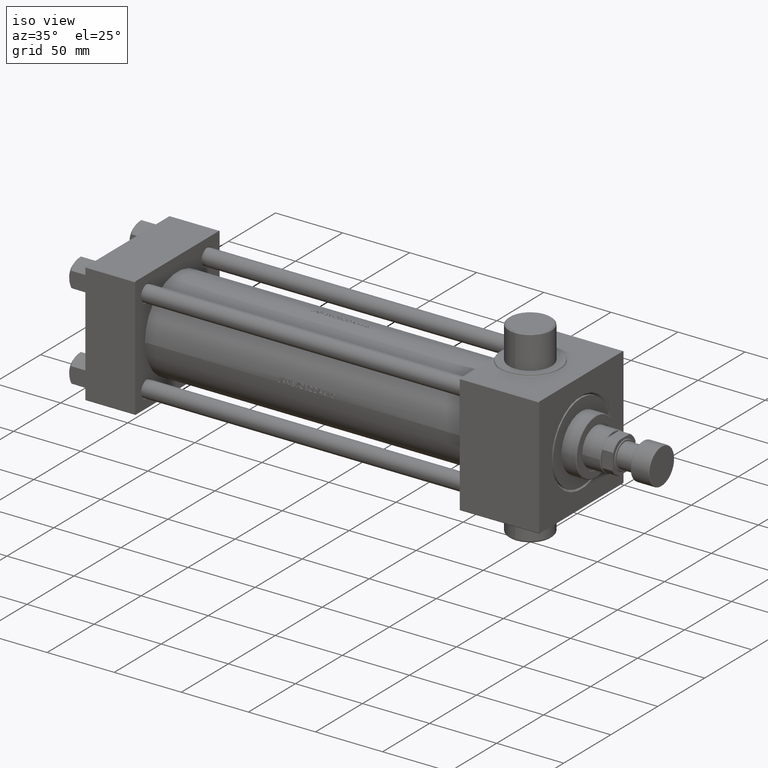
[diagram: clean part render]
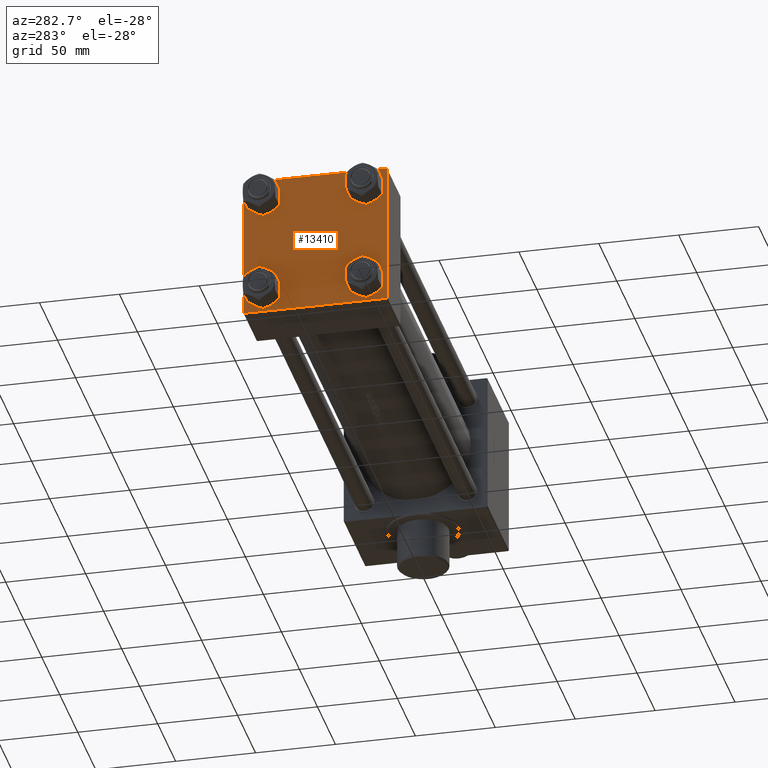
[diagram: tour spotlight — one face highlighted and labeled with its STEP entity id]
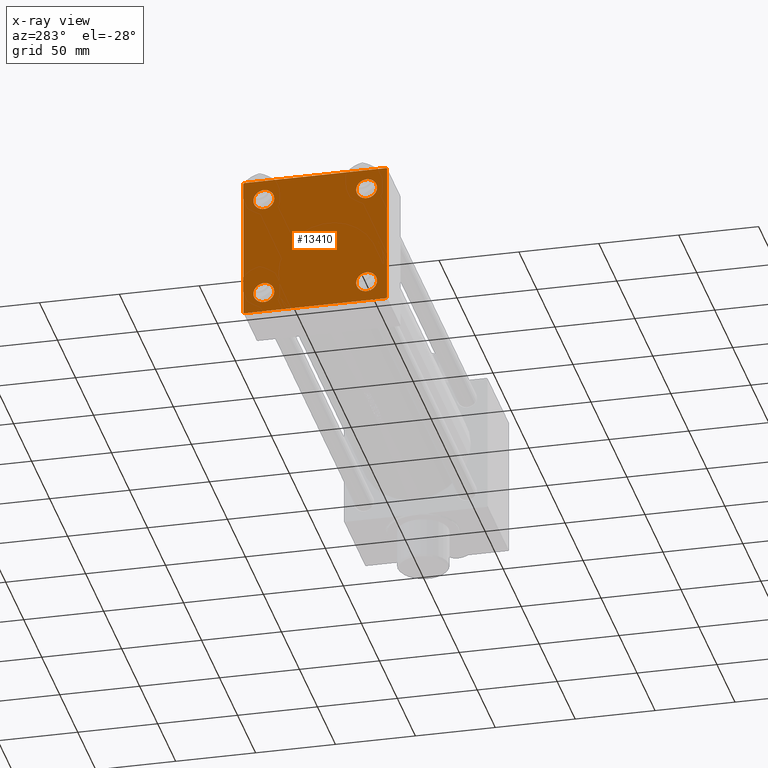
[diagram: x-ray of the same camera — body ghosted, this tour face saturated]
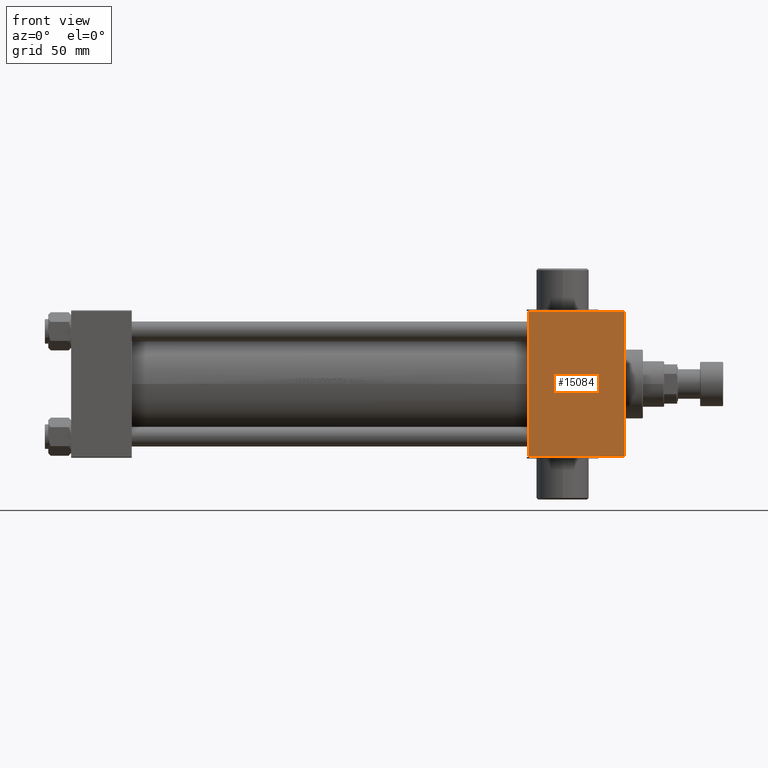
[diagram: tour spotlight — one face highlighted and labeled with its STEP entity id]
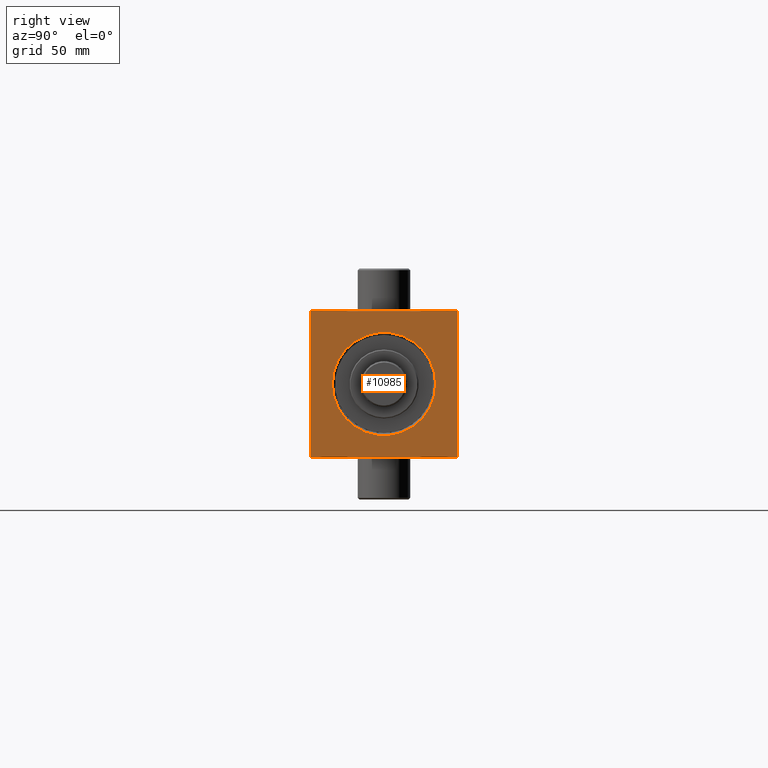
[diagram: tour spotlight — one face highlighted and labeled with its STEP entity id]
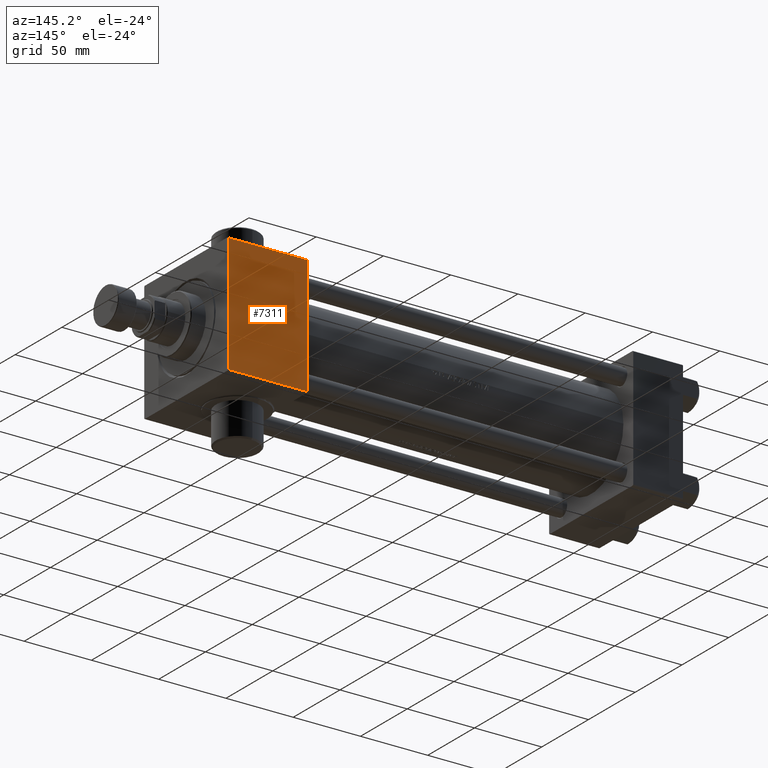
[diagram: tour spotlight — one face highlighted and labeled with its STEP entity id]
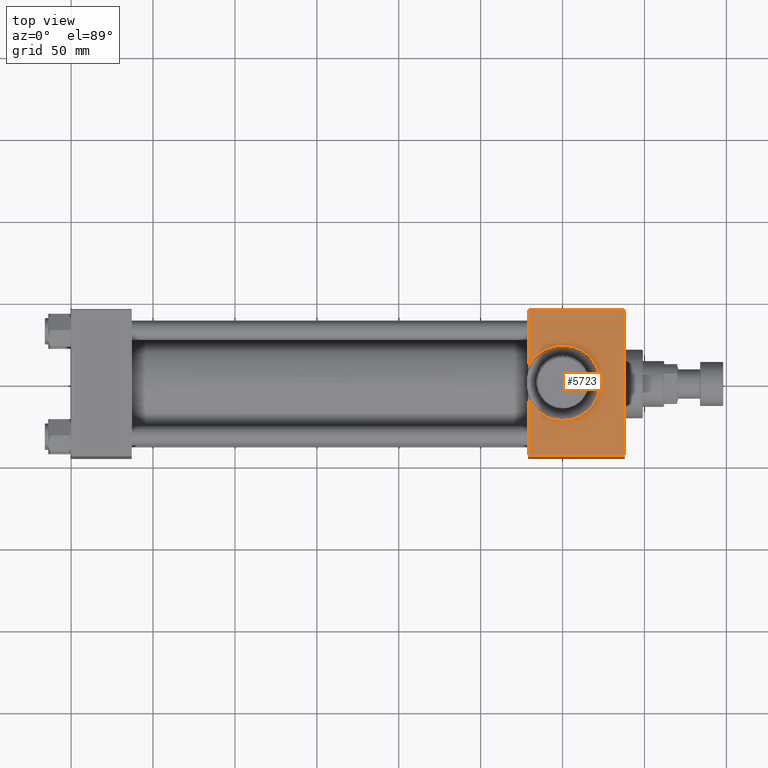
[diagram: tour spotlight — one face highlighted and labeled with its STEP entity id]
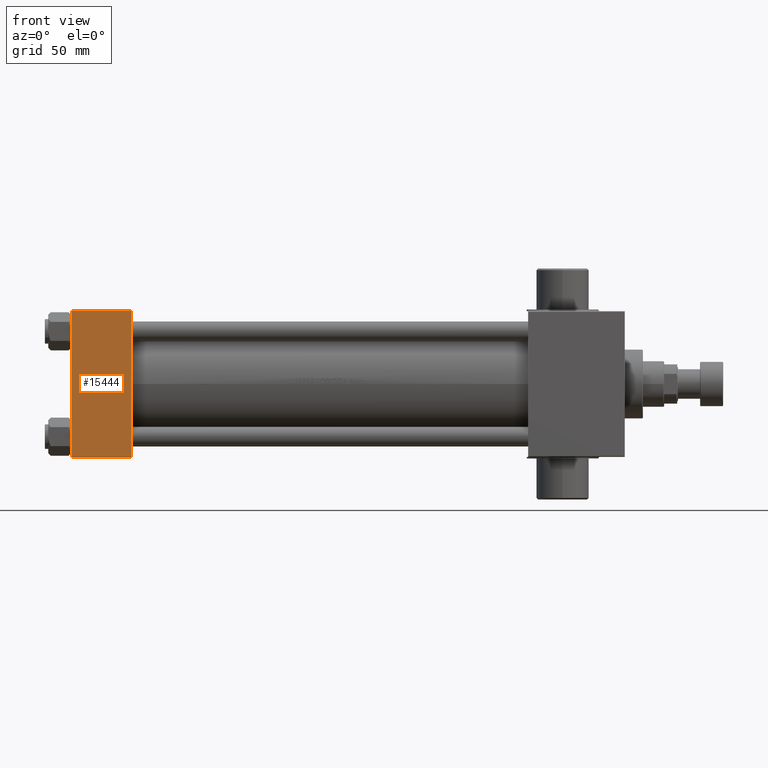
[diagram: tour spotlight — one face highlighted and labeled with its STEP entity id]
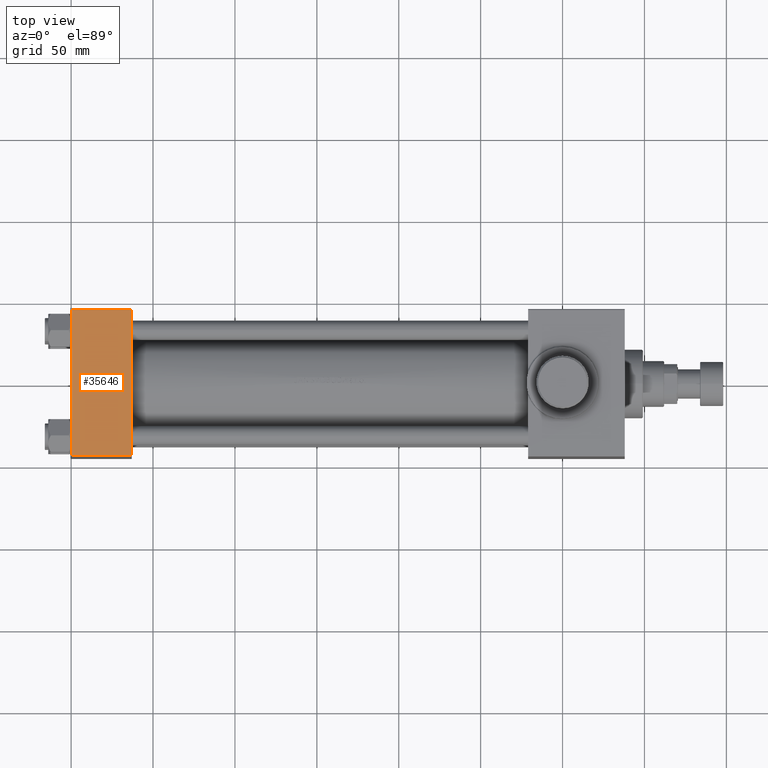
[diagram: tour spotlight — one face highlighted and labeled with its STEP entity id]
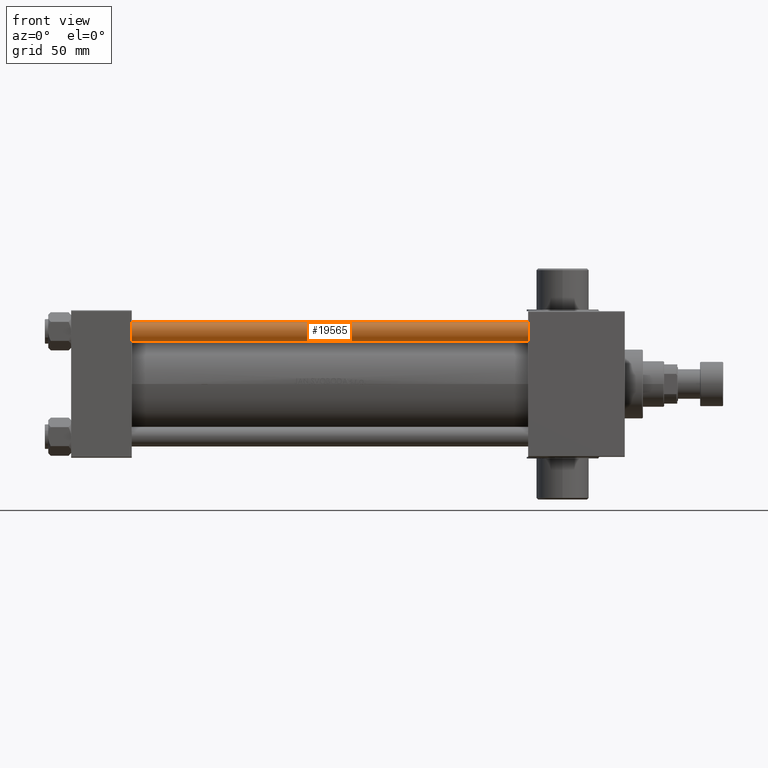
[diagram: tour spotlight — one face highlighted and labeled with its STEP entity id]
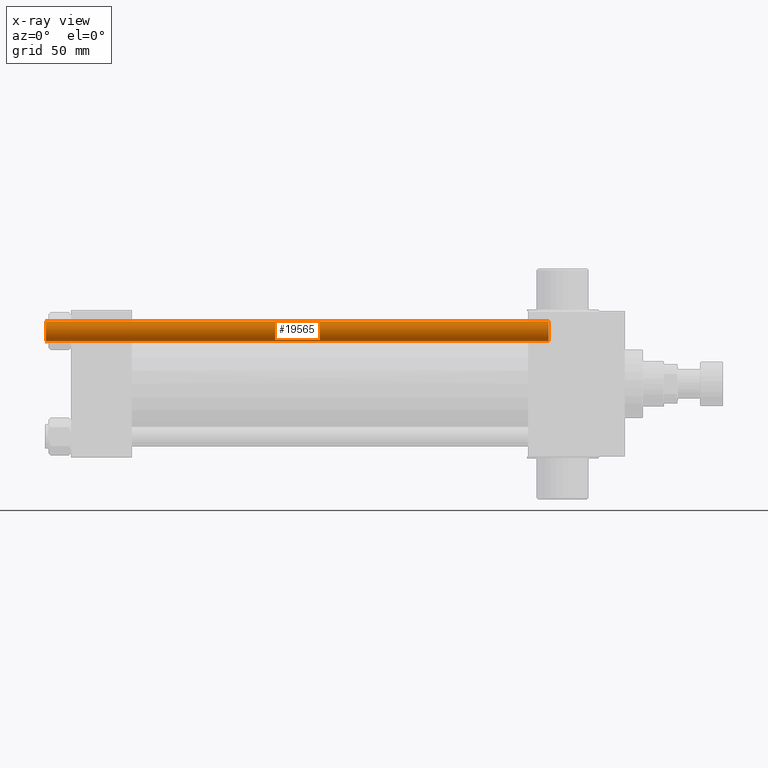
[diagram: x-ray of the same camera — body ghosted, this tour face saturated]
A machine part: a face-by-face anatomy tour. The part has 1079 B-rep faces; the first image is the clean iso view, then the 8 largest visible faces are spotlighted one at a time (largest first), each with its STEP entity span.

Face 1 — auxiliary view, entity #13410. An x-ray twin of the same camera follows (body ghosted, this face saturated) — the face is partly hidden behind the body. In plain terms, the highlighted planar face has unit normal (-1, 0, -0).
Definition (entity closure, byte-faithful):
#50 = CARTESIAN_POINT ( 'NONE',  ( 0.000000000000000000, 44.74999999999999289, 44.74999999999999289 ) ) ;
#67 = ORIENTED_EDGE ( 'NONE', *, *, #18908, .T. ) ;
#494 = DIRECTION ( 'NONE',  ( 1.000000000000000000, -0.000000000000000000, 0.000000000000000000 ) ) ;
#641 = DIRECTION ( 'NONE',  ( 1.000000000000000000, -0.000000000000000000, 0.000000000000000000 ) ) ;
#805 = CARTESIAN_POINT ( 'NONE',  ( 0.000000000000000000, -44.49999999999995737, 45.00000000000000000 ) ) ;
#1091 = CARTESIAN_POINT ( 'NONE',  ( 0.000000000000000000, -32.14999999999997726, -32.15000000000001279 ) ) ;
#1128 = CARTESIAN_POINT ( 'NONE',  ( 0.000000000000000000, 32.14999999999999147, 32.15000000000000568 ) ) ;
#1276 = FACE_BOUND ( 'NONE', #44112, .T. ) ;
#1281 = VECTOR ( 'NONE', #38834, 1000.000000000000114 ) ;
#1383 = DIRECTION ( 'NONE',  ( 0.000000000000000000, -1.000000000000000000, -1.541976423090495387E-16 ) ) ;
#1864 = DIRECTION ( 'NONE',  ( 1.000000000000000000, -0.000000000000000000, 0.000000000000000000 ) ) ;
#2220 = CARTESIAN_POINT ( 'NONE',  ( 0.000000000000000000, -44.49999999999995737, -45.00000000000000000 ) ) ;
#2519 = ORIENTED_EDGE ( 'NONE', *, *, #18929, .T. ) ;
#2922 = VECTOR ( 'NONE', #39448, 1000.000000000000000 ) ;
#3443 = CARTESIAN_POINT ( 'NONE',  ( 0.000000000000000000, 32.14999999999999147, -32.15000000000000568 ) ) ;
#3828 = CIRCLE ( 'NONE', #37243, 6.499999999999977796 ) ;
#4115 = CIRCLE ( 'NONE', #34527, 6.499999999999977796 ) ;
#4396 = CARTESIAN_POINT ( 'NONE',  ( 0.000000000000000000, 44.99999999999998579, 45.00000000000001421 ) ) ;
#4877 = EDGE_CURVE ( 'NONE', #41340, #45751, #43838, .T. ) ;
#5187 = DIRECTION ( 'NONE',  ( 1.000000000000000000, -0.000000000000000000, 0.000000000000000000 ) ) ;
#5297 = CARTESIAN_POINT ( 'NONE',  ( 0.000000000000000000, 44.99999999999998579, -44.49999999999995737 ) ) ;
#6231 = CARTESIAN_POINT ( 'NONE',  ( 0.000000000000000000, -32.14999999999997726, -32.15000000000001279 ) ) ;
#7191 = CARTESIAN_POINT ( 'NONE',  ( 0.000000000000000000, 32.14999999999999147, 32.15000000000000568 ) ) ;
#7690 = EDGE_LOOP ( 'NONE', ( #18977, #30225, #44643, #67, #45860, #14468, #23416, #24282 ) ) ;
#7827 = VECTOR ( 'NONE', #14323, 1000.000000000000114 ) ;
#8211 = EDGE_CURVE ( 'NONE', #10600, #41538, #46126, .T. ) ;
#8889 = VERTEX_POINT ( 'NONE', #9057 ) ;
#8970 = DIRECTION ( 'NONE',  ( 0.000000000000000000, 0.000000000000000000, 1.000000000000000000 ) ) ;
#9057 = CARTESIAN_POINT ( 'NONE',  ( 0.000000000000000000, 32.14999999999999147, -38.64999999999998437 ) ) ;
#9070 = VERTEX_POINT ( 'NONE', #25660 ) ;
#9087 = EDGE_CURVE ( 'NONE', #11478, #9070, #16939, .T. ) ;
#9124 = LINE ( 'NONE', #23866, #1281 ) ;
#9343 = DIRECTION ( 'NONE',  ( 1.000000000000000000, -0.000000000000000000, 0.000000000000000000 ) ) ;
#10414 = EDGE_LOOP ( 'NONE', ( #46808, #26813 ) ) ;
#10600 = VERTEX_POINT ( 'NONE', #38895 ) ;
#11478 = VERTEX_POINT ( 'NONE', #46037 ) ;
#11710 = CARTESIAN_POINT ( 'NONE',  ( 0.000000000000000000, -32.14999999999997726, -25.65000000000003411 ) ) ;
#12474 = DIRECTION ( 'NONE',  ( -1.000000000000000000, 0.000000000000000000, -0.000000000000000000 ) ) ;
#12779 = EDGE_CURVE ( 'NONE', #27769, #43395, #4115, .T. ) ;
#13036 = VECTOR ( 'NONE', #1383, 1000.000000000000000 ) ;
#13293 = ORIENTED_EDGE ( 'NONE', *, *, #9087, .T. ) ;
#13304 = EDGE_CURVE ( 'NONE', #20654, #8889, #14032, .T. ) ;
#13410 = ADVANCED_FACE ( 'NONE', ( #34128, #20336, #1276, #38154, #16519 ), #31032, .T. ) ;
#13547 = CARTESIAN_POINT ( 'NONE',  ( 0.000000000000000000, 44.99999999999998579, -44.99999999999998579 ) ) ;
#13997 = DIRECTION ( 'NONE',  ( 0.000000000000000000, -1.000000000000000000, -1.541976423090495633E-16 ) ) ;
#14032 = CIRCLE ( 'NONE', #20135, 6.499999999999977796 ) ;
#14323 = DIRECTION ( 'NONE',  ( -0.000000000000000000, -0.7071067811865474617, -0.7071067811865474617 ) ) ;
#14350 = DIRECTION ( 'NONE',  ( 0.000000000000000000, 0.7071067811865474617, -0.7071067811865474617 ) ) ;
#14468 = ORIENTED_EDGE ( 'NONE', *, *, #25669, .T. ) ;
#14801 = DIRECTION ( 'NONE',  ( 1.000000000000000000, -0.000000000000000000, 0.000000000000000000 ) ) ;
#15033 = DIRECTION ( 'NONE',  ( 0.000000000000000000, 0.000000000000000000, 1.000000000000000000 ) ) ;
#16180 = AXIS2_PLACEMENT_3D ( 'NONE', #25423, #641, #22312 ) ;
#16519 = FACE_OUTER_BOUND ( 'NONE', #7690, .T. ) ;
#16757 = DIRECTION ( 'NONE',  ( -0.000000000000000000, 0.000000000000000000, 1.000000000000000000 ) ) ;
#16939 = CIRCLE ( 'NONE', #16180, 6.500000000000019540 ) ;
#18017 = EDGE_CURVE ( 'NONE', #45914, #40849, #41514, .T. ) ;
#18908 = EDGE_CURVE ( 'NONE', #41538, #39047, #9124, .T. ) ;
#18929 = EDGE_CURVE ( 'NONE', #9070, #11478, #32440, .T. ) ;
#18977 = ORIENTED_EDGE ( 'NONE', *, *, #34847, .T. ) ;
#19026 = AXIS2_PLACEMENT_3D ( 'NONE', #1128, #5187, #19719 ) ;
#19715 = CARTESIAN_POINT ( 'NONE',  ( 0.000000000000000000, -45.00000000000000711, 44.49999999999997158 ) ) ;
#19719 = DIRECTION ( 'NONE',  ( 0.000000000000000000, 0.000000000000000000, 1.000000000000000000 ) ) ;
#19744 = CARTESIAN_POINT ( 'NONE',  ( -0.000000000000000000, -44.75000000000029843, 44.74999999999967315 ) ) ;
#20135 = AXIS2_PLACEMENT_3D ( 'NONE', #3443, #1864, #32248 ) ;
#20336 = FACE_BOUND ( 'NONE', #42268, .T. ) ;
#20413 = CARTESIAN_POINT ( 'NONE',  ( 0.000000000000000000, 32.14999999999999147, 25.65000000000002700 ) ) ;
#20556 = VERTEX_POINT ( 'NONE', #19715 ) ;
#20654 = VERTEX_POINT ( 'NONE', #43158 ) ;
#21246 = LINE ( 'NONE', #35746, #7827 ) ;
#22312 = DIRECTION ( 'NONE',  ( 0.000000000000000000, 0.000000000000000000, 1.000000000000000000 ) ) ;
#23416 = ORIENTED_EDGE ( 'NONE', *, *, #33387, .F. ) ;
#23462 = CARTESIAN_POINT ( 'NONE',  ( 0.000000000000000000, 44.49999999999998579, 45.00000000000001421 ) ) ;
#23866 = CARTESIAN_POINT ( 'NONE',  ( 0.000000000000000000, -44.74999999999998579, -44.74999999999998579 ) ) ;
#24282 = ORIENTED_EDGE ( 'NONE', *, *, #4877, .T. ) ;
#25423 = CARTESIAN_POINT ( 'NONE',  ( 0.000000000000000000, -32.14999999999997726, 32.15000000000001279 ) ) ;
#25660 = CARTESIAN_POINT ( 'NONE',  ( 0.000000000000000000, -32.14999999999997726, 38.65000000000003411 ) ) ;
#25669 = EDGE_CURVE ( 'NONE', #20556, #34851, #27348, .T. ) ;
#25819 = LINE ( 'NONE', #4396, #38915 ) ;
#26628 = CARTESIAN_POINT ( 'NONE',  ( 0.000000000000000000, 44.99999999999998579, 45.00000000000001421 ) ) ;
#26682 = EDGE_CURVE ( 'NONE', #20556, #39047, #31624, .T. ) ;
#26804 = DIRECTION ( 'NONE',  ( 1.000000000000000000, -0.000000000000000000, 0.000000000000000000 ) ) ;
#26813 = ORIENTED_EDGE ( 'NONE', *, *, #12779, .T. ) ;
#27348 = LINE ( 'NONE', #19744, #38625 ) ;
#27769 = VERTEX_POINT ( 'NONE', #20413 ) ;
#28523 = CIRCLE ( 'NONE', #42942, 6.499999999999977796 ) ;
#29309 = CARTESIAN_POINT ( 'NONE',  ( 0.000000000000000000, 32.14999999999999147, -32.15000000000000568 ) ) ;
#29771 = ORIENTED_EDGE ( 'NONE', *, *, #45424, .T. ) ;
#30225 = ORIENTED_EDGE ( 'NONE', *, *, #37059, .T. ) ;
#31002 = DIRECTION ( 'NONE',  ( 1.000000000000000000, -0.000000000000000000, 0.000000000000000000 ) ) ;
#31032 = PLANE ( 'NONE',  #46691 ) ;
#31188 = CIRCLE ( 'NONE', #19026, 6.499999999999977796 ) ;
#31624 = LINE ( 'NONE', #36109, #2922 ) ;
#31775 = EDGE_CURVE ( 'NONE', #43395, #27769, #31188, .T. ) ;
#32104 = CARTESIAN_POINT ( 'NONE',  ( 0.000000000000000000, -32.14999999999997726, -38.64999999999999147 ) ) ;
#32248 = DIRECTION ( 'NONE',  ( 0.000000000000000000, 0.000000000000000000, 1.000000000000000000 ) ) ;
#32307 = EDGE_CURVE ( 'NONE', #8889, #20654, #3828, .T. ) ;
#32440 = CIRCLE ( 'NONE', #36973, 6.500000000000019540 ) ;
#32877 = DIRECTION ( 'NONE',  ( 0.000000000000000000, 0.000000000000000000, 1.000000000000000000 ) ) ;
#33004 = VERTEX_POINT ( 'NONE', #5297 ) ;
#33387 = EDGE_CURVE ( 'NONE', #41340, #34851, #36849, .T. ) ;
#33651 = DIRECTION ( 'NONE',  ( 0.000000000000000000, 0.000000000000000000, -1.000000000000000000 ) ) ;
#34128 = FACE_BOUND ( 'NONE', #36007, .T. ) ;
#34388 = VECTOR ( 'NONE', #14350, 1000.000000000000114 ) ;
#34527 = AXIS2_PLACEMENT_3D ( 'NONE', #7191, #14801, #32877 ) ;
#34736 = CARTESIAN_POINT ( 'NONE',  ( 0.000000000000000000, -45.00000000000000000, -44.49999999999995737 ) ) ;
#34847 = EDGE_CURVE ( 'NONE', #45751, #33004, #25819, .T. ) ;
#34851 = VERTEX_POINT ( 'NONE', #805 ) ;
#35266 = DIRECTION ( 'NONE',  ( 0.000000000000000000, 0.000000000000000000, 1.000000000000000000 ) ) ;
#35272 = DIRECTION ( 'NONE',  ( 0.000000000000000000, 0.000000000000000000, 1.000000000000000000 ) ) ;
#35746 = CARTESIAN_POINT ( 'NONE',  ( 0.000000000000000000, 44.74999999999998579, -44.74999999999998579 ) ) ;
#36007 = EDGE_LOOP ( 'NONE', ( #2519, #13293 ) ) ;
#36109 = CARTESIAN_POINT ( 'NONE',  ( 0.000000000000000000, -45.00000000000000711, 45.00000000000000000 ) ) ;
#36770 = ORIENTED_EDGE ( 'NONE', *, *, #18017, .T. ) ;
#36849 = LINE ( 'NONE', #26628, #13036 ) ;
#36973 = AXIS2_PLACEMENT_3D ( 'NONE', #38605, #31002, #35272 ) ;
#37059 = EDGE_CURVE ( 'NONE', #33004, #10600, #21246, .T. ) ;
#37243 = AXIS2_PLACEMENT_3D ( 'NONE', #29309, #494, #15033 ) ;
#38154 = FACE_BOUND ( 'NONE', #10414, .T. ) ;
#38605 = CARTESIAN_POINT ( 'NONE',  ( 0.000000000000000000, -32.14999999999997726, 32.15000000000001279 ) ) ;
#38625 = VECTOR ( 'NONE', #46508, 1000.000000000000114 ) ;
#38834 = DIRECTION ( 'NONE',  ( 0.000000000000000000, -0.7071067811865474617, 0.7071067811865474617 ) ) ;
#38895 = CARTESIAN_POINT ( 'NONE',  ( 0.000000000000000000, 44.49999999999998579, -44.99999999999998579 ) ) ;
#38915 = VECTOR ( 'NONE', #33651, 1000.000000000000000 ) ;
#38928 = VECTOR ( 'NONE', #13997, 1000.000000000000000 ) ;
#39047 = VERTEX_POINT ( 'NONE', #34736 ) ;
#39448 = DIRECTION ( 'NONE',  ( 0.000000000000000000, 7.709882115452476934E-17, -1.000000000000000000 ) ) ;
#40495 = ORIENTED_EDGE ( 'NONE', *, *, #32307, .T. ) ;
#40849 = VERTEX_POINT ( 'NONE', #32104 ) ;
#41258 = CARTESIAN_POINT ( 'NONE',  ( 0.000000000000000000, 0.000000000000000000, 0.000000000000000000 ) ) ;
#41340 = VERTEX_POINT ( 'NONE', #23462 ) ;
#41514 = CIRCLE ( 'NONE', #43024, 6.499999999999977796 ) ;
#41538 = VERTEX_POINT ( 'NONE', #2220 ) ;
#41727 = CARTESIAN_POINT ( 'NONE',  ( 0.000000000000000000, 44.99999999999998579, 44.50000000000001421 ) ) ;
#42268 = EDGE_LOOP ( 'NONE', ( #36770, #29771 ) ) ;
#42730 = CARTESIAN_POINT ( 'NONE',  ( 0.000000000000000000, 32.14999999999999147, 38.64999999999999147 ) ) ;
#42942 = AXIS2_PLACEMENT_3D ( 'NONE', #1091, #26804, #8970 ) ;
#43024 = AXIS2_PLACEMENT_3D ( 'NONE', #6231, #9343, #35266 ) ;
#43158 = CARTESIAN_POINT ( 'NONE',  ( 0.000000000000000000, 32.14999999999999147, -25.65000000000002700 ) ) ;
#43395 = VERTEX_POINT ( 'NONE', #42730 ) ;
#43838 = LINE ( 'NONE', #50, #34388 ) ;
#44112 = EDGE_LOOP ( 'NONE', ( #46930, #40495 ) ) ;
#44643 = ORIENTED_EDGE ( 'NONE', *, *, #8211, .T. ) ;
#45424 = EDGE_CURVE ( 'NONE', #40849, #45914, #28523, .T. ) ;
#45751 = VERTEX_POINT ( 'NONE', #41727 ) ;
#45860 = ORIENTED_EDGE ( 'NONE', *, *, #26682, .F. ) ;
#45914 = VERTEX_POINT ( 'NONE', #11710 ) ;
#46037 = CARTESIAN_POINT ( 'NONE',  ( 0.000000000000000000, -32.14999999999997726, 25.64999999999999147 ) ) ;
#46126 = LINE ( 'NONE', #13547, #38928 ) ;
#46508 = DIRECTION ( 'NONE',  ( -0.000000000000000000, 0.7071067811865425767, 0.7071067811865524577 ) ) ;
#46691 = AXIS2_PLACEMENT_3D ( 'NONE', #41258, #12474, #16757 ) ;
#46808 = ORIENTED_EDGE ( 'NONE', *, *, #31775, .T. ) ;
#46930 = ORIENTED_EDGE ( 'NONE', *, *, #13304, .T. ) ;

Face 2 — front view, entity #15084. In plain terms, the highlighted planar face has unit normal (0, -1, -0).
Definition (entity closure, byte-faithful):
#3455 = AXIS2_PLACEMENT_3D ( 'NONE', #7698, #44808, #5797 ) ;
#4686 = ORIENTED_EDGE ( 'NONE', *, *, #39691, .T. ) ;
#4979 = VECTOR ( 'NONE', #14071, 1000.000000000000000 ) ;
#5382 = VERTEX_POINT ( 'NONE', #32944 ) ;
#5797 = DIRECTION ( 'NONE',  ( 0.000000000000000000, 1.000000000000000000, 1.559302000878029206E-16 ) ) ;
#7698 = CARTESIAN_POINT ( 'NONE',  ( 337.9999999999999432, 44.50000000000000000, -45.00000000000000000 ) ) ;
#10409 = VERTEX_POINT ( 'NONE', #11328 ) ;
#10739 = CARTESIAN_POINT ( 'NONE',  ( 337.9999999999999432, 44.00000000000000000, -45.00000000000000000 ) ) ;
#11328 = CARTESIAN_POINT ( 'NONE',  ( 337.9999999999999432, -44.00000000000000000, -45.00000000000001421 ) ) ;
#12950 = DIRECTION ( 'NONE',  ( 0.000000000000000000, -1.000000000000000000, -1.559302000878028960E-16 ) ) ;
#13275 = CARTESIAN_POINT ( 'NONE',  ( 337.9999999999999432, 44.50000000000000000, -45.00000000000000000 ) ) ;
#14071 = DIRECTION ( 'NONE',  ( 1.000000000000000000, 0.000000000000000000, 0.000000000000000000 ) ) ;
#15084 = ADVANCED_FACE ( 'NONE', ( #25794 ), #21757, .T. ) ;
#16838 = LINE ( 'NONE', #13275, #34766 ) ;
#17646 = LINE ( 'NONE', #10739, #4979 ) ;
#20583 = EDGE_CURVE ( 'NONE', #24861, #10409, #16838, .T. ) ;
#20762 = VECTOR ( 'NONE', #31468, 1000.000000000000000 ) ;
#21757 = PLANE ( 'NONE',  #3455 ) ;
#22099 = EDGE_CURVE ( 'NONE', #44562, #5382, #23428, .T. ) ;
#22810 = ORIENTED_EDGE ( 'NONE', *, *, #22099, .F. ) ;
#23239 = ORIENTED_EDGE ( 'NONE', *, *, #20583, .T. ) ;
#23428 = LINE ( 'NONE', #38636, #35464 ) ;
#23483 = EDGE_LOOP ( 'NONE', ( #23239, #4686, #22810, #30999 ) ) ;
#24861 = VERTEX_POINT ( 'NONE', #45126 ) ;
#25794 = FACE_OUTER_BOUND ( 'NONE', #23483, .T. ) ;
#27793 = DIRECTION ( 'NONE',  ( 0.000000000000000000, -1.000000000000000000, -1.559302000878028960E-16 ) ) ;
#30999 = ORIENTED_EDGE ( 'NONE', *, *, #46946, .T. ) ;
#31468 = DIRECTION ( 'NONE',  ( -1.000000000000000000, 0.000000000000000000, 0.000000000000000000 ) ) ;
#31701 = LINE ( 'NONE', #31929, #20762 ) ;
#31929 = CARTESIAN_POINT ( 'NONE',  ( 278.9999999999999432, -44.00000000000000000, -45.00000000000001421 ) ) ;
#32944 = CARTESIAN_POINT ( 'NONE',  ( 278.9999999999999432, -44.00000000000000000, -45.00000000000001421 ) ) ;
#34766 = VECTOR ( 'NONE', #27793, 1000.000000000000000 ) ;
#35464 = VECTOR ( 'NONE', #12950, 1000.000000000000000 ) ;
#38636 = CARTESIAN_POINT ( 'NONE',  ( 278.9999999999999432, 44.50000000000000000, -45.00000000000000000 ) ) ;
#39691 = EDGE_CURVE ( 'NONE', #10409, #5382, #31701, .T. ) ;
#41777 = CARTESIAN_POINT ( 'NONE',  ( 278.9999999999999432, 44.00000000000000000, -45.00000000000000000 ) ) ;
#44562 = VERTEX_POINT ( 'NONE', #41777 ) ;
#44808 = DIRECTION ( 'NONE',  ( 0.000000000000000000, 1.559302000878029206E-16, -1.000000000000000000 ) ) ;
#45126 = CARTESIAN_POINT ( 'NONE',  ( 337.9999999999999432, 44.00000000000000000, -45.00000000000000000 ) ) ;
#46946 = EDGE_CURVE ( 'NONE', #44562, #24861, #17646, .T. ) ;

Face 3 — right view, entity #10985. In plain terms, the highlighted planar face has unit normal (-1, 0, -0).
Definition (entity closure, byte-faithful):
#1792 = LINE ( 'NONE', #19671, #36645 ) ;
#4312 = DIRECTION ( 'NONE',  ( 0.000000000000000000, 0.7071067811865474617, -0.7071067811865474617 ) ) ;
#4567 = EDGE_LOOP ( 'NONE', ( #39663, #38579, #42993, #26550, #11581, #43864, #9557, #29090 ) ) ;
#5228 = CARTESIAN_POINT ( 'NONE',  ( 337.9999999999999432, 0.000000000000000000, 0.000000000000000000 ) ) ;
#6035 = CARTESIAN_POINT ( 'NONE',  ( 337.9999999999999432, 44.50000000000000000, 45.00000000000000000 ) ) ;
#6252 = VERTEX_POINT ( 'NONE', #25498 ) ;
#6572 = DIRECTION ( 'NONE',  ( -0.000000000000000000, 0.7071067811865474617, 0.7071067811865474617 ) ) ;
#6888 = EDGE_CURVE ( 'NONE', #20910, #10409, #29307, .T. ) ;
#7638 = EDGE_CURVE ( 'NONE', #34305, #15630, #1792, .T. ) ;
#7782 = CARTESIAN_POINT ( 'NONE',  ( 337.9999999999999432, 44.50000000000000000, -44.49999999999997158 ) ) ;
#8270 = VERTEX_POINT ( 'NONE', #7782 ) ;
#8565 = EDGE_CURVE ( 'NONE', #24861, #8270, #20168, .T. ) ;
#8941 = CARTESIAN_POINT ( 'NONE',  ( 337.9999999999999432, 44.50000000000000000, 44.50000000000000000 ) ) ;
#9425 = LINE ( 'NONE', #23936, #39800 ) ;
#9546 = VERTEX_POINT ( 'NONE', #8941 ) ;
#9557 = ORIENTED_EDGE ( 'NONE', *, *, #36932, .T. ) ;
#10161 = CARTESIAN_POINT ( 'NONE',  ( 337.9999999999999432, 44.50000000000000000, -44.50000000000000000 ) ) ;
#10409 = VERTEX_POINT ( 'NONE', #11328 ) ;
#10985 = ADVANCED_FACE ( 'NONE', ( #30456, #37582 ), #41628, .F. ) ;
#11150 = DIRECTION ( 'NONE',  ( 0.000000000000000000, -0.7071067811865474617, 0.7071067811865474617 ) ) ;
#11328 = CARTESIAN_POINT ( 'NONE',  ( 337.9999999999999432, -44.00000000000000000, -45.00000000000001421 ) ) ;
#11536 = EDGE_LOOP ( 'NONE', ( #15688, #13009 ) ) ;
#11565 = EDGE_CURVE ( 'NONE', #9546, #8270, #9425, .T. ) ;
#11581 = ORIENTED_EDGE ( 'NONE', *, *, #11565, .F. ) ;
#11901 = DIRECTION ( 'NONE',  ( -0.000000000000000000, 0.000000000000000000, 1.000000000000000000 ) ) ;
#12727 = VERTEX_POINT ( 'NONE', #46224 ) ;
#13009 = ORIENTED_EDGE ( 'NONE', *, *, #29339, .T. ) ;
#13275 = CARTESIAN_POINT ( 'NONE',  ( 337.9999999999999432, 44.50000000000000000, -45.00000000000000000 ) ) ;
#14678 = CARTESIAN_POINT ( 'NONE',  ( 337.9999999999999432, -44.49999999999999289, 44.99999999999999289 ) ) ;
#15630 = VERTEX_POINT ( 'NONE', #23294 ) ;
#15688 = ORIENTED_EDGE ( 'NONE', *, *, #34199, .T. ) ;
#15696 = DIRECTION ( 'NONE',  ( -1.000000000000000000, 0.000000000000000000, -0.000000000000000000 ) ) ;
#16251 = AXIS2_PLACEMENT_3D ( 'NONE', #5228, #34255, #11901 ) ;
#16838 = LINE ( 'NONE', #13275, #34766 ) ;
#18667 = VERTEX_POINT ( 'NONE', #31989 ) ;
#18999 = CARTESIAN_POINT ( 'NONE',  ( 337.9999999999999432, 44.00000000000000000, 45.00000000000000000 ) ) ;
#19162 = AXIS2_PLACEMENT_3D ( 'NONE', #41383, #15696, #40913 ) ;
#19671 = CARTESIAN_POINT ( 'NONE',  ( 337.9999999999999432, -44.49999999999999289, 44.49999999999999289 ) ) ;
#20168 = LINE ( 'NONE', #10161, #45031 ) ;
#20378 = DIRECTION ( 'NONE',  ( 0.000000000000000000, 0.000000000000000000, -1.000000000000000000 ) ) ;
#20583 = EDGE_CURVE ( 'NONE', #24861, #10409, #16838, .T. ) ;
#20910 = VERTEX_POINT ( 'NONE', #21008 ) ;
#20916 = CARTESIAN_POINT ( 'NONE',  ( 337.9999999999999432, -44.00000000000000000, 44.99999999999999289 ) ) ;
#21008 = CARTESIAN_POINT ( 'NONE',  ( 337.9999999999999432, -44.49999999999999289, -44.49999999999999289 ) ) ;
#23294 = CARTESIAN_POINT ( 'NONE',  ( 337.9999999999999432, -44.49999999999999289, 44.49999999999999289 ) ) ;
#23936 = CARTESIAN_POINT ( 'NONE',  ( 337.9999999999999432, 44.50000000000000000, 45.00000000000000000 ) ) ;
#24861 = VERTEX_POINT ( 'NONE', #45126 ) ;
#25431 = LINE ( 'NONE', #18999, #27584 ) ;
#25498 = CARTESIAN_POINT ( 'NONE',  ( 337.9999999999999432, 44.00000000000000000, 45.00000000000000000 ) ) ;
#25808 = VECTOR ( 'NONE', #40125, 1000.000000000000000 ) ;
#26208 = CARTESIAN_POINT ( 'NONE',  ( 337.9999999999999432, -44.00000000000000000, -45.00000000000001421 ) ) ;
#26550 = ORIENTED_EDGE ( 'NONE', *, *, #8565, .T. ) ;
#27584 = VECTOR ( 'NONE', #11150, 1000.000000000000114 ) ;
#27793 = DIRECTION ( 'NONE',  ( 0.000000000000000000, -1.000000000000000000, -1.559302000878028960E-16 ) ) ;
#29090 = ORIENTED_EDGE ( 'NONE', *, *, #7638, .T. ) ;
#29307 = LINE ( 'NONE', #26208, #37505 ) ;
#29339 = EDGE_CURVE ( 'NONE', #18667, #12727, #42525, .T. ) ;
#29578 = AXIS2_PLACEMENT_3D ( 'NONE', #38908, #31784, #45333 ) ;
#29961 = EDGE_CURVE ( 'NONE', #15630, #20910, #32763, .T. ) ;
#30456 = FACE_BOUND ( 'NONE', #11536, .T. ) ;
#30840 = DIRECTION ( 'NONE',  ( -0.000000000000000000, -0.7071067811865426878, -0.7071067811865524577 ) ) ;
#31727 = LINE ( 'NONE', #6035, #45802 ) ;
#31784 = DIRECTION ( 'NONE',  ( -1.000000000000000000, 0.000000000000000000, -0.000000000000000000 ) ) ;
#31989 = CARTESIAN_POINT ( 'NONE',  ( 337.9999999999999432, 3.857637417314152434E-15, 31.49999999999991829 ) ) ;
#32763 = LINE ( 'NONE', #14678, #25808 ) ;
#34199 = EDGE_CURVE ( 'NONE', #12727, #18667, #44192, .T. ) ;
#34255 = DIRECTION ( 'NONE',  ( -1.000000000000000000, 0.000000000000000000, -0.000000000000000000 ) ) ;
#34305 = VERTEX_POINT ( 'NONE', #20916 ) ;
#34766 = VECTOR ( 'NONE', #27793, 1000.000000000000000 ) ;
#36645 = VECTOR ( 'NONE', #30840, 1000.000000000000000 ) ;
#36932 = EDGE_CURVE ( 'NONE', #6252, #34305, #31727, .T. ) ;
#37505 = VECTOR ( 'NONE', #4312, 1000.000000000000114 ) ;
#37582 = FACE_OUTER_BOUND ( 'NONE', #4567, .T. ) ;
#38579 = ORIENTED_EDGE ( 'NONE', *, *, #6888, .T. ) ;
#38908 = CARTESIAN_POINT ( 'NONE',  ( 337.9999999999999432, 0.000000000000000000, 0.000000000000000000 ) ) ;
#39663 = ORIENTED_EDGE ( 'NONE', *, *, #29961, .T. ) ;
#39800 = VECTOR ( 'NONE', #20378, 1000.000000000000000 ) ;
#40125 = DIRECTION ( 'NONE',  ( 0.000000000000000000, 0.000000000000000000, -1.000000000000000000 ) ) ;
#40132 = EDGE_CURVE ( 'NONE', #9546, #6252, #25431, .T. ) ;
#40913 = DIRECTION ( 'NONE',  ( 0.000000000000000000, 0.000000000000000000, 1.000000000000000000 ) ) ;
#41383 = CARTESIAN_POINT ( 'NONE',  ( 337.9999999999999432, 0.000000000000000000, 0.000000000000000000 ) ) ;
#41628 = PLANE ( 'NONE',  #16251 ) ;
#41949 = DIRECTION ( 'NONE',  ( 0.000000000000000000, -1.000000000000000000, -7.796510004390144799E-17 ) ) ;
#42525 = CIRCLE ( 'NONE', #29578, 31.49999999999991829 ) ;
#42993 = ORIENTED_EDGE ( 'NONE', *, *, #20583, .F. ) ;
#43864 = ORIENTED_EDGE ( 'NONE', *, *, #40132, .T. ) ;
#44192 = CIRCLE ( 'NONE', #19162, 31.49999999999991829 ) ;
#45031 = VECTOR ( 'NONE', #6572, 1000.000000000000114 ) ;
#45126 = CARTESIAN_POINT ( 'NONE',  ( 337.9999999999999432, 44.00000000000000000, -45.00000000000000000 ) ) ;
#45333 = DIRECTION ( 'NONE',  ( 0.000000000000000000, 0.000000000000000000, 1.000000000000000000 ) ) ;
#45802 = VECTOR ( 'NONE', #41949, 1000.000000000000000 ) ;
#46224 = CARTESIAN_POINT ( 'NONE',  ( 337.9999999999999432, 0.000000000000000000, -31.49999999999991829 ) ) ;

Face 4 — auxiliary view, entity #7311. In plain terms, the highlighted planar face has unit normal (0, -1, -0).
Definition (entity closure, byte-faithful):
#222 = AXIS2_PLACEMENT_3D ( 'NONE', #5194, #31827, #28037 ) ;
#721 = VECTOR ( 'NONE', #17358, 1000.000000000000000 ) ;
#1370 = FACE_OUTER_BOUND ( 'NONE', #24676, .T. ) ;
#2132 = CARTESIAN_POINT ( 'NONE',  ( 337.9999999999999432, -44.00000000000000000, 44.99999999999999289 ) ) ;
#2435 = VERTEX_POINT ( 'NONE', #12577 ) ;
#2878 = ORIENTED_EDGE ( 'NONE', *, *, #36932, .F. ) ;
#5082 = VERTEX_POINT ( 'NONE', #15773 ) ;
#5194 = CARTESIAN_POINT ( 'NONE',  ( 337.9999999999999432, 44.50000000000000000, 45.00000000000000000 ) ) ;
#6035 = CARTESIAN_POINT ( 'NONE',  ( 337.9999999999999432, 44.50000000000000000, 45.00000000000000000 ) ) ;
#6252 = VERTEX_POINT ( 'NONE', #25498 ) ;
#7242 = DIRECTION ( 'NONE',  ( -1.000000000000000000, 0.000000000000000000, 0.000000000000000000 ) ) ;
#7311 = ADVANCED_FACE ( 'NONE', ( #1370 ), #8776, .F. ) ;
#8776 = PLANE ( 'NONE',  #222 ) ;
#12577 = CARTESIAN_POINT ( 'NONE',  ( 278.9999999999999432, -44.00000000000000000, 44.99999999999999289 ) ) ;
#14297 = DIRECTION ( 'NONE',  ( 0.000000000000000000, -1.000000000000000000, -7.796510004390144799E-17 ) ) ;
#15773 = CARTESIAN_POINT ( 'NONE',  ( 278.9999999999999432, 44.00000000000000000, 45.00000000000000000 ) ) ;
#17358 = DIRECTION ( 'NONE',  ( 1.000000000000000000, 0.000000000000000000, 0.000000000000000000 ) ) ;
#20916 = CARTESIAN_POINT ( 'NONE',  ( 337.9999999999999432, -44.00000000000000000, 44.99999999999999289 ) ) ;
#21816 = EDGE_CURVE ( 'NONE', #6252, #5082, #35344, .T. ) ;
#22138 = CARTESIAN_POINT ( 'NONE',  ( 278.9999999999999432, 44.50000000000000000, 45.00000000000000000 ) ) ;
#23916 = ORIENTED_EDGE ( 'NONE', *, *, #27322, .T. ) ;
#24676 = EDGE_LOOP ( 'NONE', ( #23916, #43336, #2878, #27811 ) ) ;
#25498 = CARTESIAN_POINT ( 'NONE',  ( 337.9999999999999432, 44.00000000000000000, 45.00000000000000000 ) ) ;
#27322 = EDGE_CURVE ( 'NONE', #5082, #2435, #46878, .T. ) ;
#27811 = ORIENTED_EDGE ( 'NONE', *, *, #21816, .T. ) ;
#28037 = DIRECTION ( 'NONE',  ( 0.000000000000000000, 1.000000000000000000, 7.796510004390146031E-17 ) ) ;
#28608 = VECTOR ( 'NONE', #7242, 1000.000000000000000 ) ;
#28673 = CARTESIAN_POINT ( 'NONE',  ( 278.9999999999999432, 44.00000000000000000, 45.00000000000000000 ) ) ;
#30608 = EDGE_CURVE ( 'NONE', #2435, #34305, #34977, .T. ) ;
#31727 = LINE ( 'NONE', #6035, #45802 ) ;
#31827 = DIRECTION ( 'NONE',  ( 0.000000000000000000, 7.796510004390146031E-17, -1.000000000000000000 ) ) ;
#34305 = VERTEX_POINT ( 'NONE', #20916 ) ;
#34977 = LINE ( 'NONE', #2132, #721 ) ;
#35344 = LINE ( 'NONE', #28673, #28608 ) ;
#36932 = EDGE_CURVE ( 'NONE', #6252, #34305, #31727, .T. ) ;
#41676 = VECTOR ( 'NONE', #14297, 1000.000000000000000 ) ;
#41949 = DIRECTION ( 'NONE',  ( 0.000000000000000000, -1.000000000000000000, -7.796510004390144799E-17 ) ) ;
#43336 = ORIENTED_EDGE ( 'NONE', *, *, #30608, .T. ) ;
#45802 = VECTOR ( 'NONE', #41949, 1000.000000000000000 ) ;
#46878 = LINE ( 'NONE', #22138, #41676 ) ;

Face 5 — top view, entity #5723. In plain terms, the highlighted planar face has unit normal (0, 0, -1).
Definition (entity closure, byte-faithful):
#117 = DIRECTION ( 'NONE',  ( 0.000000000000000000, 0.000000000000000000, 1.000000000000000000 ) ) ;
#1150 = VERTEX_POINT ( 'NONE', #6245 ) ;
#1661 = LINE ( 'NONE', #16199, #11999 ) ;
#1935 = LINE ( 'NONE', #42154, #38901 ) ;
#2153 = EDGE_CURVE ( 'NONE', #12773, #14115, #40263, .T. ) ;
#3086 = EDGE_CURVE ( 'NONE', #32707, #20910, #1935, .T. ) ;
#5723 = ADVANCED_FACE ( 'NONE', ( #39238 ), #21164, .F. ) ;
#5918 = VERTEX_POINT ( 'NONE', #39363 ) ;
#6245 = CARTESIAN_POINT ( 'NONE',  ( 278.9999999999999432, -44.49999999999999289, 9.380831519646866568 ) ) ;
#6961 = ORIENTED_EDGE ( 'NONE', *, *, #2153, .T. ) ;
#7168 = AXIS2_PLACEMENT_3D ( 'NONE', #16512, #38145, #8674 ) ;
#8464 = DIRECTION ( 'NONE',  ( -0.000000000000000000, 1.000000000000000000, 0.000000000000000000 ) ) ;
#8674 = DIRECTION ( 'NONE',  ( 0.000000000000000000, 0.000000000000000000, 1.000000000000000000 ) ) ;
#9571 = DIRECTION ( 'NONE',  ( 1.000000000000000000, 0.000000000000000000, 0.000000000000000000 ) ) ;
#10294 = EDGE_CURVE ( 'NONE', #1150, #12773, #13930, .T. ) ;
#11999 = VECTOR ( 'NONE', #30715, 1000.000000000000000 ) ;
#12607 = EDGE_CURVE ( 'NONE', #14115, #36780, #45885, .T. ) ;
#12773 = VERTEX_POINT ( 'NONE', #25518 ) ;
#13100 = CARTESIAN_POINT ( 'NONE',  ( 337.9999999999999432, -44.49999999999999289, 44.49999999999999289 ) ) ;
#13930 = CIRCLE ( 'NONE', #16974, 23.00000000000001421 ) ;
#14115 = VERTEX_POINT ( 'NONE', #40428 ) ;
#14433 = CARTESIAN_POINT ( 'NONE',  ( 278.9999999999999432, -44.49999999999999289, -44.49999999999999289 ) ) ;
#14469 = DIRECTION ( 'NONE',  ( 0.000000000000000000, -0.000000000000000000, 1.000000000000000000 ) ) ;
#14472 = EDGE_CURVE ( 'NONE', #15630, #5918, #16439, .T. ) ;
#14678 = CARTESIAN_POINT ( 'NONE',  ( 337.9999999999999432, -44.49999999999999289, 44.99999999999999289 ) ) ;
#15015 = VECTOR ( 'NONE', #17679, 1000.000000000000000 ) ;
#15630 = VERTEX_POINT ( 'NONE', #23294 ) ;
#16174 = EDGE_LOOP ( 'NONE', ( #42767, #27480, #6961, #37084, #42723, #30762, #17009, #44759 ) ) ;
#16199 = CARTESIAN_POINT ( 'NONE',  ( 278.9999999999999432, -44.49999999999999289, 44.99999999999999289 ) ) ;
#16439 = LINE ( 'NONE', #13100, #38386 ) ;
#16512 = CARTESIAN_POINT ( 'NONE',  ( 300.0000000000000000, -44.49999999999999289, -8.673617379884036705E-17 ) ) ;
#16974 = AXIS2_PLACEMENT_3D ( 'NONE', #43204, #44141, #117 ) ;
#17009 = ORIENTED_EDGE ( 'NONE', *, *, #29961, .F. ) ;
#17492 = AXIS2_PLACEMENT_3D ( 'NONE', #30724, #27160, #27395 ) ;
#17679 = DIRECTION ( 'NONE',  ( 0.000000000000000000, 0.000000000000000000, -1.000000000000000000 ) ) ;
#20910 = VERTEX_POINT ( 'NONE', #21008 ) ;
#21008 = CARTESIAN_POINT ( 'NONE',  ( 337.9999999999999432, -44.49999999999999289, -44.49999999999999289 ) ) ;
#21109 = EDGE_CURVE ( 'NONE', #36780, #32707, #1661, .T. ) ;
#21164 = PLANE ( 'NONE',  #43535 ) ;
#23294 = CARTESIAN_POINT ( 'NONE',  ( 337.9999999999999432, -44.49999999999999289, 44.49999999999999289 ) ) ;
#25173 = EDGE_CURVE ( 'NONE', #5918, #1150, #43124, .T. ) ;
#25518 = CARTESIAN_POINT ( 'NONE',  ( 300.0000000000000000, -44.49999999999999289, 23.00000000000001421 ) ) ;
#25808 = VECTOR ( 'NONE', #40125, 1000.000000000000000 ) ;
#27160 = DIRECTION ( 'NONE',  ( -0.000000000000000000, 1.000000000000000000, 0.000000000000000000 ) ) ;
#27395 = DIRECTION ( 'NONE',  ( 0.000000000000000000, 0.000000000000000000, 1.000000000000000000 ) ) ;
#27480 = ORIENTED_EDGE ( 'NONE', *, *, #10294, .T. ) ;
#29961 = EDGE_CURVE ( 'NONE', #15630, #20910, #32763, .T. ) ;
#30715 = DIRECTION ( 'NONE',  ( 0.000000000000000000, 0.000000000000000000, -1.000000000000000000 ) ) ;
#30724 = CARTESIAN_POINT ( 'NONE',  ( 300.0000000000000000, -44.49999999999999289, -8.673617379884036705E-17 ) ) ;
#30762 = ORIENTED_EDGE ( 'NONE', *, *, #3086, .T. ) ;
#32707 = VERTEX_POINT ( 'NONE', #14433 ) ;
#32763 = LINE ( 'NONE', #14678, #25808 ) ;
#33164 = CARTESIAN_POINT ( 'NONE',  ( 278.9999999999999432, -44.49999999999999289, -9.380831519646823935 ) ) ;
#36780 = VERTEX_POINT ( 'NONE', #33164 ) ;
#37084 = ORIENTED_EDGE ( 'NONE', *, *, #12607, .T. ) ;
#38145 = DIRECTION ( 'NONE',  ( -0.000000000000000000, 1.000000000000000000, 0.000000000000000000 ) ) ;
#38386 = VECTOR ( 'NONE', #42817, 1000.000000000000000 ) ;
#38901 = VECTOR ( 'NONE', #9571, 1000.000000000000000 ) ;
#39238 = FACE_OUTER_BOUND ( 'NONE', #16174, .T. ) ;
#39333 = CARTESIAN_POINT ( 'NONE',  ( 278.9999999999999432, -44.49999999999999289, 44.99999999999999289 ) ) ;
#39363 = CARTESIAN_POINT ( 'NONE',  ( 278.9999999999999432, -44.49999999999999289, 44.49999999999999289 ) ) ;
#40125 = DIRECTION ( 'NONE',  ( 0.000000000000000000, 0.000000000000000000, -1.000000000000000000 ) ) ;
#40263 = CIRCLE ( 'NONE', #17492, 23.00000000000001421 ) ;
#40428 = CARTESIAN_POINT ( 'NONE',  ( 300.0000000000000000, -44.49999999999999289, -23.00000000000001421 ) ) ;
#42154 = CARTESIAN_POINT ( 'NONE',  ( 337.9999999999999432, -44.49999999999999289, -44.50000000000002132 ) ) ;
#42723 = ORIENTED_EDGE ( 'NONE', *, *, #21109, .T. ) ;
#42767 = ORIENTED_EDGE ( 'NONE', *, *, #25173, .T. ) ;
#42817 = DIRECTION ( 'NONE',  ( -1.000000000000000000, 0.000000000000000000, 0.000000000000000000 ) ) ;
#43124 = LINE ( 'NONE', #39333, #15015 ) ;
#43204 = CARTESIAN_POINT ( 'NONE',  ( 300.0000000000000000, -44.49999999999999289, -8.673617379884036705E-17 ) ) ;
#43535 = AXIS2_PLACEMENT_3D ( 'NONE', #44382, #8464, #14469 ) ;
#44141 = DIRECTION ( 'NONE',  ( -0.000000000000000000, 1.000000000000000000, 0.000000000000000000 ) ) ;
#44382 = CARTESIAN_POINT ( 'NONE',  ( 337.9999999999999432, -44.49999999999999289, 44.99999999999999289 ) ) ;
#44759 = ORIENTED_EDGE ( 'NONE', *, *, #14472, .T. ) ;
#45885 = CIRCLE ( 'NONE', #7168, 23.00000000000001421 ) ;

Face 6 — front view, entity #15444. In plain terms, the highlighted planar face has unit normal (0, -1, -0).
Definition (entity closure, byte-faithful):
#2220 = CARTESIAN_POINT ( 'NONE',  ( 0.000000000000000000, -44.49999999999995737, -45.00000000000000000 ) ) ;
#2485 = LINE ( 'NONE', #27257, #34446 ) ;
#2863 = PLANE ( 'NONE',  #34630 ) ;
#8211 = EDGE_CURVE ( 'NONE', #10600, #41538, #46126, .T. ) ;
#9715 = EDGE_CURVE ( 'NONE', #16314, #41538, #2485, .T. ) ;
#10600 = VERTEX_POINT ( 'NONE', #38895 ) ;
#13547 = CARTESIAN_POINT ( 'NONE',  ( 0.000000000000000000, 44.99999999999998579, -44.99999999999998579 ) ) ;
#13798 = CARTESIAN_POINT ( 'NONE',  ( 37.00000000000000000, 44.99999999999998579, -44.99999999999998579 ) ) ;
#13997 = DIRECTION ( 'NONE',  ( 0.000000000000000000, -1.000000000000000000, -1.541976423090495633E-16 ) ) ;
#14983 = CARTESIAN_POINT ( 'NONE',  ( 37.00000000000000000, -44.49999999999995737, -45.00000000000000000 ) ) ;
#15444 = ADVANCED_FACE ( 'NONE', ( #20964 ), #2863, .T. ) ;
#16314 = VERTEX_POINT ( 'NONE', #14983 ) ;
#16649 = VECTOR ( 'NONE', #28613, 1000.000000000000000 ) ;
#20552 = CARTESIAN_POINT ( 'NONE',  ( 37.00000000000000000, 44.99999999999998579, -44.99999999999998579 ) ) ;
#20784 = LINE ( 'NONE', #20552, #16649 ) ;
#20832 = ORIENTED_EDGE ( 'NONE', *, *, #41318, .T. ) ;
#20964 = FACE_OUTER_BOUND ( 'NONE', #46485, .T. ) ;
#24625 = DIRECTION ( 'NONE',  ( -1.000000000000000000, 0.000000000000000000, 0.000000000000000000 ) ) ;
#26504 = ORIENTED_EDGE ( 'NONE', *, *, #28518, .T. ) ;
#26788 = CARTESIAN_POINT ( 'NONE',  ( 37.00000000000000000, 44.49999999999998579, -44.99999999999998579 ) ) ;
#27257 = CARTESIAN_POINT ( 'NONE',  ( 0.000000000000000000, -44.49999999999998579, -45.00000000000000000 ) ) ;
#28328 = DIRECTION ( 'NONE',  ( 0.000000000000000000, 1.541976423090495880E-16, -1.000000000000000000 ) ) ;
#28518 = EDGE_CURVE ( 'NONE', #42265, #16314, #20784, .T. ) ;
#28613 = DIRECTION ( 'NONE',  ( 0.000000000000000000, -1.000000000000000000, -1.541976423090495633E-16 ) ) ;
#30124 = LINE ( 'NONE', #26788, #33674 ) ;
#33674 = VECTOR ( 'NONE', #41297, 1000.000000000000000 ) ;
#34446 = VECTOR ( 'NONE', #24625, 1000.000000000000000 ) ;
#34630 = AXIS2_PLACEMENT_3D ( 'NONE', #13798, #28328, #46615 ) ;
#36743 = CARTESIAN_POINT ( 'NONE',  ( 37.00000000000000000, 44.49999999999998579, -44.99999999999998579 ) ) ;
#38895 = CARTESIAN_POINT ( 'NONE',  ( 0.000000000000000000, 44.49999999999998579, -44.99999999999998579 ) ) ;
#38928 = VECTOR ( 'NONE', #13997, 1000.000000000000000 ) ;
#41297 = DIRECTION ( 'NONE',  ( 1.000000000000000000, 0.000000000000000000, 0.000000000000000000 ) ) ;
#41318 = EDGE_CURVE ( 'NONE', #10600, #42265, #30124, .T. ) ;
#41538 = VERTEX_POINT ( 'NONE', #2220 ) ;
#42265 = VERTEX_POINT ( 'NONE', #36743 ) ;
#45779 = ORIENTED_EDGE ( 'NONE', *, *, #9715, .T. ) ;
#46126 = LINE ( 'NONE', #13547, #38928 ) ;
#46323 = ORIENTED_EDGE ( 'NONE', *, *, #8211, .F. ) ;
#46485 = EDGE_LOOP ( 'NONE', ( #46323, #20832, #26504, #45779 ) ) ;
#46615 = DIRECTION ( 'NONE',  ( 0.000000000000000000, 1.000000000000000000, 1.541976423090495880E-16 ) ) ;

Face 7 — top view, entity #35646. In plain terms, the highlighted planar face has unit normal (0, 0, -1).
Definition (entity closure, byte-faithful):
#2709 = CARTESIAN_POINT ( 'NONE',  ( 37.00000000000000000, -45.00000000000000711, 44.49999999999997158 ) ) ;
#2922 = VECTOR ( 'NONE', #39448, 1000.000000000000000 ) ;
#4172 = PLANE ( 'NONE',  #40459 ) ;
#4402 = DIRECTION ( 'NONE',  ( 0.000000000000000000, -7.709882115452478166E-17, 1.000000000000000000 ) ) ;
#5114 = CARTESIAN_POINT ( 'NONE',  ( 37.00000000000000000, -45.00000000000000711, 45.00000000000000000 ) ) ;
#9574 = VECTOR ( 'NONE', #24453, 1000.000000000000000 ) ;
#9949 = LINE ( 'NONE', #27801, #9574 ) ;
#10264 = EDGE_LOOP ( 'NONE', ( #40261, #20281, #35361, #28689 ) ) ;
#13468 = LINE ( 'NONE', #42489, #46471 ) ;
#14577 = VERTEX_POINT ( 'NONE', #39701 ) ;
#14986 = EDGE_CURVE ( 'NONE', #26051, #20556, #9949, .T. ) ;
#19164 = DIRECTION ( 'NONE',  ( -0.000000000000000000, 1.000000000000000000, 7.709882115452478166E-17 ) ) ;
#19715 = CARTESIAN_POINT ( 'NONE',  ( 0.000000000000000000, -45.00000000000000711, 44.49999999999997158 ) ) ;
#20281 = ORIENTED_EDGE ( 'NONE', *, *, #25619, .T. ) ;
#20556 = VERTEX_POINT ( 'NONE', #19715 ) ;
#23207 = FACE_OUTER_BOUND ( 'NONE', #10264, .T. ) ;
#24453 = DIRECTION ( 'NONE',  ( -1.000000000000000000, 0.000000000000000000, 0.000000000000000000 ) ) ;
#25619 = EDGE_CURVE ( 'NONE', #39047, #14577, #35589, .T. ) ;
#25681 = VECTOR ( 'NONE', #45403, 1000.000000000000000 ) ;
#26051 = VERTEX_POINT ( 'NONE', #2709 ) ;
#26682 = EDGE_CURVE ( 'NONE', #20556, #39047, #31624, .T. ) ;
#27801 = CARTESIAN_POINT ( 'NONE',  ( 37.00000000000000000, -45.00000000000000711, 44.49999999999997158 ) ) ;
#28689 = ORIENTED_EDGE ( 'NONE', *, *, #14986, .T. ) ;
#31624 = LINE ( 'NONE', #36109, #2922 ) ;
#32937 = EDGE_CURVE ( 'NONE', #26051, #14577, #13468, .T. ) ;
#34736 = CARTESIAN_POINT ( 'NONE',  ( 0.000000000000000000, -45.00000000000000000, -44.49999999999995737 ) ) ;
#35361 = ORIENTED_EDGE ( 'NONE', *, *, #32937, .F. ) ;
#35589 = LINE ( 'NONE', #37808, #25681 ) ;
#35646 = ADVANCED_FACE ( 'NONE', ( #23207 ), #4172, .F. ) ;
#36109 = CARTESIAN_POINT ( 'NONE',  ( 0.000000000000000000, -45.00000000000000711, 45.00000000000000000 ) ) ;
#37808 = CARTESIAN_POINT ( 'NONE',  ( 37.00000000000000000, -45.00000000000000000, -44.49999999999998579 ) ) ;
#39047 = VERTEX_POINT ( 'NONE', #34736 ) ;
#39448 = DIRECTION ( 'NONE',  ( 0.000000000000000000, 7.709882115452476934E-17, -1.000000000000000000 ) ) ;
#39701 = CARTESIAN_POINT ( 'NONE',  ( 37.00000000000000000, -45.00000000000000000, -44.49999999999995737 ) ) ;
#40261 = ORIENTED_EDGE ( 'NONE', *, *, #26682, .T. ) ;
#40459 = AXIS2_PLACEMENT_3D ( 'NONE', #5114, #19164, #4402 ) ;
#42252 = DIRECTION ( 'NONE',  ( 0.000000000000000000, 7.709882115452476934E-17, -1.000000000000000000 ) ) ;
#42489 = CARTESIAN_POINT ( 'NONE',  ( 37.00000000000000000, -45.00000000000000711, 45.00000000000000000 ) ) ;
#45403 = DIRECTION ( 'NONE',  ( 1.000000000000000000, 0.000000000000000000, 0.000000000000000000 ) ) ;
#46471 = VECTOR ( 'NONE', #42252, 1000.000000000000000 ) ;

Face 8 — front view, entity #19565. An x-ray twin of the same camera follows (body ghosted, this face saturated) — the face is partly hidden behind the body. In plain terms, the highlighted cylindrical surface (edge-blend (fillet) strip) has radius 6 mm, axis along (-1, 0, 0).
Definition (entity closure, byte-faithful):
#3209 = VERTEX_POINT ( 'NONE', #24788 ) ;
#4349 = VECTOR ( 'NONE', #14843, 1000.000000000000000 ) ;
#5692 = DIRECTION ( 'NONE',  ( 0.000000000000000000, 0.000000000000000000, -1.000000000000000000 ) ) ;
#6395 = ORIENTED_EDGE ( 'NONE', *, *, #38486, .T. ) ;
#7465 = LINE ( 'NONE', #7931, #4349 ) ;
#7562 = CIRCLE ( 'NONE', #17465, 6.000000000000000888 ) ;
#7869 = LINE ( 'NONE', #26436, #21107 ) ;
#7931 = CARTESIAN_POINT ( 'NONE',  ( -6.000000000000000888, 0.000000000000000000, 308.0000000000000000 ) ) ;
#8492 = ORIENTED_EDGE ( 'NONE', *, *, #20708, .F. ) ;
#9428 = ORIENTED_EDGE ( 'NONE', *, *, #29671, .T. ) ;
#9737 = DIRECTION ( 'NONE',  ( 1.000000000000000000, 0.000000000000000000, 0.000000000000000000 ) ) ;
#11681 = DIRECTION ( 'NONE',  ( -0.000000000000000000, -0.000000000000000000, -1.000000000000000000 ) ) ;
#11878 = DIRECTION ( 'NONE',  ( 1.000000000000000000, 0.000000000000000000, 0.000000000000000000 ) ) ;
#13627 = VERTEX_POINT ( 'NONE', #42666 ) ;
#14843 = DIRECTION ( 'NONE',  ( -0.000000000000000000, -0.000000000000000000, -1.000000000000000000 ) ) ;
#16369 = FACE_OUTER_BOUND ( 'NONE', #20256, .T. ) ;
#17465 = AXIS2_PLACEMENT_3D ( 'NONE', #37795, #45391, #11878 ) ;
#18543 = CIRCLE ( 'NONE', #35261, 6.000000000000000888 ) ;
#19565 = ADVANCED_FACE ( 'NONE', ( #16369 ), #30882, .T. ) ;
#19714 = DIRECTION ( 'NONE',  ( -1.000000000000000000, 0.000000000000000000, 0.000000000000000000 ) ) ;
#20176 = EDGE_CURVE ( 'NONE', #3209, #13627, #7869, .T. ) ;
#20256 = EDGE_LOOP ( 'NONE', ( #6395, #40365, #9428, #8492 ) ) ;
#20708 = EDGE_CURVE ( 'NONE', #26702, #35475, #7465, .T. ) ;
#21107 = VECTOR ( 'NONE', #11681, 1000.000000000000000 ) ;
#24788 = CARTESIAN_POINT ( 'NONE',  ( 6.000000000000000888, 7.347880794884120722E-16, 307.4999999999999432 ) ) ;
#26436 = CARTESIAN_POINT ( 'NONE',  ( 6.000000000000000888, 7.347880794884120722E-16, 308.0000000000000000 ) ) ;
#26702 = VERTEX_POINT ( 'NONE', #43238 ) ;
#29671 = EDGE_CURVE ( 'NONE', #13627, #35475, #7562, .T. ) ;
#30882 = CYLINDRICAL_SURFACE ( 'NONE', #33181, 6.000000000000000888 ) ;
#33181 = AXIS2_PLACEMENT_3D ( 'NONE', #45371, #41814, #19714 ) ;
#34949 = CARTESIAN_POINT ( 'NONE',  ( 0.000000000000000000, 0.000000000000000000, 307.4999999999999432 ) ) ;
#35261 = AXIS2_PLACEMENT_3D ( 'NONE', #34949, #5692, #9737 ) ;
#35475 = VERTEX_POINT ( 'NONE', #36805 ) ;
#36805 = CARTESIAN_POINT ( 'NONE',  ( -6.000000000000000888, 0.000000000000000000, 0.5000000000000559552 ) ) ;
#37795 = CARTESIAN_POINT ( 'NONE',  ( 0.000000000000000000, 0.000000000000000000, 0.5000000000000559552 ) ) ;
#38486 = EDGE_CURVE ( 'NONE', #26702, #3209, #18543, .T. ) ;
#40365 = ORIENTED_EDGE ( 'NONE', *, *, #20176, .T. ) ;
#41814 = DIRECTION ( 'NONE',  ( -0.000000000000000000, -0.000000000000000000, -1.000000000000000000 ) ) ;
#42666 = CARTESIAN_POINT ( 'NONE',  ( 6.000000000000000888, 7.347880794884120722E-16, 0.5000000000000559552 ) ) ;
#43238 = CARTESIAN_POINT ( 'NONE',  ( -6.000000000000000888, 0.000000000000000000, 307.4999999999999432 ) ) ;
#45371 = CARTESIAN_POINT ( 'NONE',  ( 0.000000000000000000, 0.000000000000000000, 308.0000000000000000 ) ) ;
#45391 = DIRECTION ( 'NONE',  ( -0.000000000000000000, -0.000000000000000000, 1.000000000000000000 ) ) ;